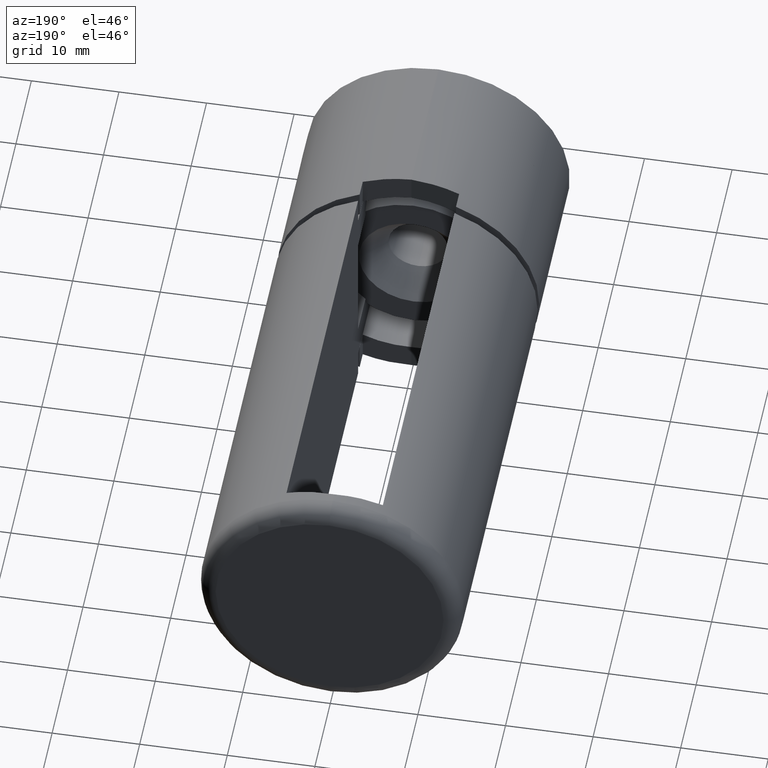
[diagram: clean part render]
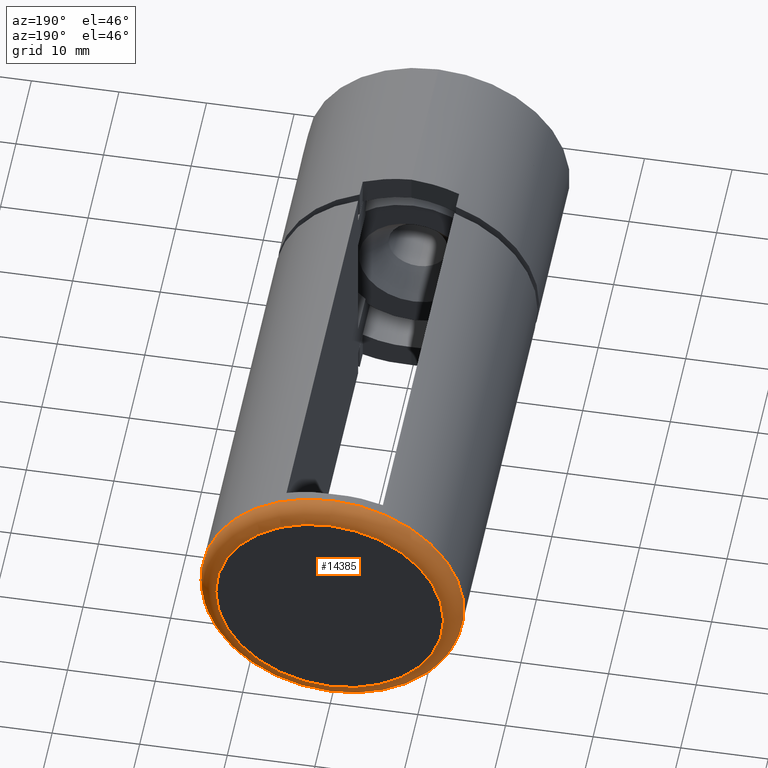
[diagram: same view with one face highlighted and labeled with its STEP entity id]
A machine part, auxiliary view. The second image highlights one B-rep face of the part: STEP entity #14385.
In plain terms, the highlighted toroidal blend (fillet) surface has major radius 13 mm and minor (blend) radius 2 mm.
Its self-contained STEP definition (entity closure, byte-faithful):
#88 = AXIS2_PLACEMENT_3D ( 'NONE', #6239, #5996, #7359 ) ;
#369 = TOROIDAL_SURFACE ( 'NONE', #13638, 13.00000000000000000, 2.000000000000000000 ) ;
#548 = DIRECTION ( 'NONE',  ( -0.0000000000000000000, 1.000000000000000000, -0.0000000000000000000 ) ) ;
#1616 = FACE_OUTER_BOUND ( 'NONE', #13766, .T. ) ;
#2644 = CIRCLE ( 'NONE', #88, 13.00000000000000000 ) ;
#2920 = CARTESIAN_POINT ( 'NONE',  ( 0.0000000000000000000, 3.500000000000003100, -15.00000000000000000 ) ) ;
#3810 = EDGE_CURVE ( 'NONE', #7330, #7330, #6743, .T. ) ;
#5191 = FACE_OUTER_BOUND ( 'NONE', #16995, .T. ) ;
#5996 = DIRECTION ( 'NONE',  ( 0.0000000000000000000, -1.000000000000000000, 0.0000000000000000000 ) ) ;
#6078 = CARTESIAN_POINT ( 'NONE',  ( 0.0000000000000000000, 3.500000000000003100, 0.0000000000000000000 ) ) ;
#6239 = CARTESIAN_POINT ( 'NONE',  ( 0.0000000000000000000, 1.500000000000000000, 0.0000000000000000000 ) ) ;
#6322 = DIRECTION ( 'NONE',  ( 0.0000000000000000000, 0.0000000000000000000, -1.000000000000000000 ) ) ;
#6379 = EDGE_CURVE ( 'NONE', #13322, #13322, #2644, .T. ) ;
#6743 = CIRCLE ( 'NONE', #13923, 15.00000000000000000 ) ;
#7330 = VERTEX_POINT ( 'NONE', #2920 ) ;
#7359 = DIRECTION ( 'NONE',  ( 0.0000000000000000000, 0.0000000000000000000, -1.000000000000000000 ) ) ;
#13322 = VERTEX_POINT ( 'NONE', #15015 ) ;
#13638 = AXIS2_PLACEMENT_3D ( 'NONE', #16078, #15965, #6322 ) ;
#13766 = EDGE_LOOP ( 'NONE', ( #17297 ) ) ;
#13923 = AXIS2_PLACEMENT_3D ( 'NONE', #6078, #548, #15213 ) ;
#14335 = ORIENTED_EDGE ( 'NONE', *, *, #3810, .F. ) ;
#14385 = ADVANCED_FACE ( 'NONE', ( #5191, #1616 ), #369, .T. ) ;
#15015 = CARTESIAN_POINT ( 'NONE',  ( 0.0000000000000000000, 1.500000000000000000, -13.00000000000000000 ) ) ;
#15213 = DIRECTION ( 'NONE',  ( 0.0000000000000000000, 0.0000000000000000000, -1.000000000000000000 ) ) ;
#15965 = DIRECTION ( 'NONE',  ( 0.0000000000000000000, -1.000000000000000000, 0.0000000000000000000 ) ) ;
#16078 = CARTESIAN_POINT ( 'NONE',  ( 0.0000000000000000000, 3.500000000000003100, 0.0000000000000000000 ) ) ;
#16995 = EDGE_LOOP ( 'NONE', ( #14335 ) ) ;
#17297 = ORIENTED_EDGE ( 'NONE', *, *, #6379, .F. ) ;